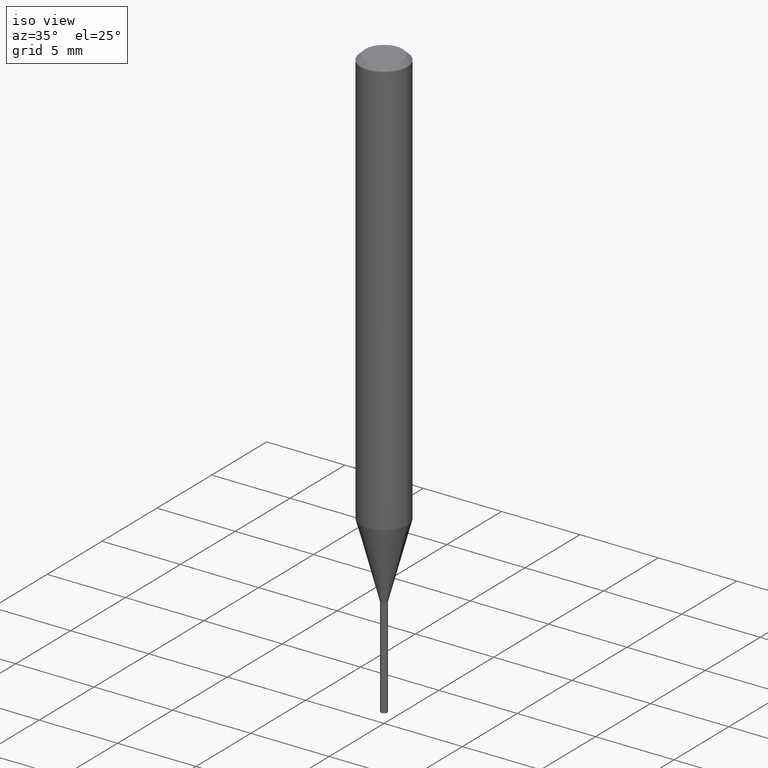
[diagram: clean part render]
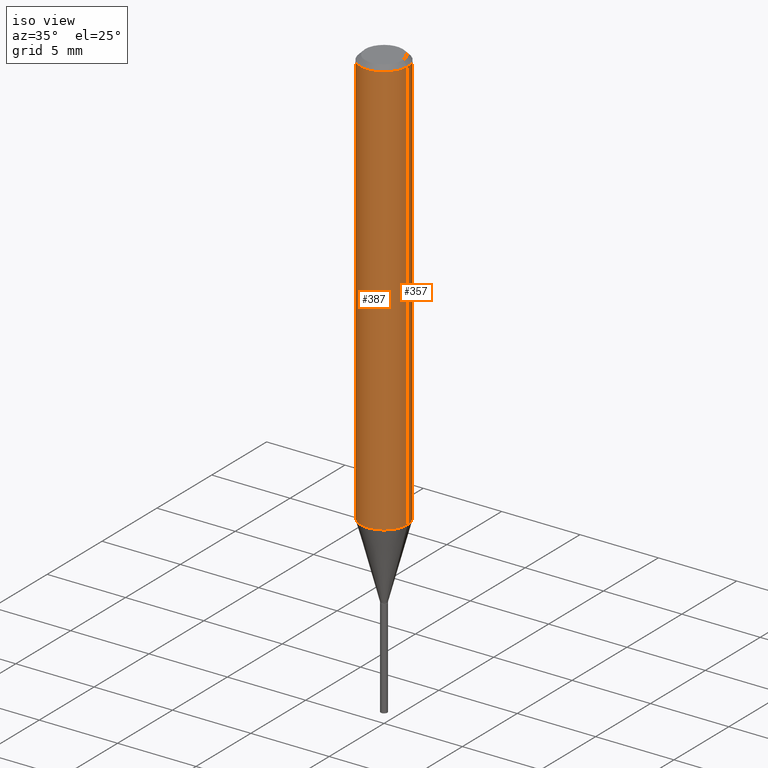
[diagram: same view with one multi-face feature highlighted, each face labeled with its STEP entity id]
A machine part, iso view. The highlighted faces form ONE feature: a constant-radius fillet chain: 2 tangent blend faces with common blend radius 1.4999 mm. The faces share edges in the B-rep.
Their STEP definitions:
[1] entity #387 (Cylinder):
#9 = FACE_OUTER_BOUND ( 'NONE', #11, .T. ) ;
#11 = EDGE_LOOP ( 'NONE', ( #442, #222, #200, #400 ) ) ;
#69 = DIRECTION ( 'NONE',  ( 1.000000000000000000, -6.982962677686266711E-15, 4.876176775795936353E-29 ) ) ;
#87 = DIRECTION ( 'NONE',  ( -2.445468806185136877E-29, 3.491481338843145188E-15, 1.000000000000000000 ) ) ;
#92 = CARTESIAN_POINT ( 'NONE',  ( -0.05905000000000006771, 4.195754854663396409E-16, -2.904631170795525045E-30 ) ) ;
#102 = CARTESIAN_POINT ( 'NONE',  ( 2.888098660104664204E-31, -4.123439461173780263E-17, -0.01181000000000007218 ) ) ;
#106 = DIRECTION ( 'NONE',  ( -2.445468806185136597E-29, 3.491481338843145583E-15, 1.000000000000000000 ) ) ;
#136 = CARTESIAN_POINT ( 'NONE',  ( 2.572662087042671903E-29, -3.673079634195394404E-15, -1.052011818975500779 ) ) ;
#137 = EDGE_CURVE ( 'NONE', #160, #271, #181, .T. ) ;
#160 = VERTEX_POINT ( 'NONE', #210 ) ;
#162 = CARTESIAN_POINT ( 'NONE',  ( 0.05905000000000006771, -4.123439461173745257E-16, 2.879382386107503723E-30 ) ) ;
#163 = VERTEX_POINT ( 'NONE', #385 ) ;
#170 = EDGE_CURVE ( 'NONE', #267, #163, #275, .T. ) ;
#181 = CIRCLE ( 'NONE', #359, 0.05904999999999999832 ) ;
#200 = ORIENTED_EDGE ( 'NONE', *, *, #443, .T. ) ;
#201 = VECTOR ( 'NONE', #87, 39.37007874015748143 ) ;
#210 = CARTESIAN_POINT ( 'NONE',  ( -0.05904999999999999832, -1.437581528937225982E-15, -0.01181000000000007218 ) ) ;
#222 = ORIENTED_EDGE ( 'NONE', *, *, #170, .T. ) ;
#228 = DIRECTION ( 'NONE',  ( -2.445468806185136877E-29, 3.491481338843145188E-15, 1.000000000000000000 ) ) ;
#267 = VERTEX_POINT ( 'NONE', #332 ) ;
#271 = VERTEX_POINT ( 'NONE', #457 ) ;
#275 = CIRCLE ( 'NONE', #395, 0.05905000000000013710 ) ;
#330 = CYLINDRICAL_SURFACE ( 'NONE', #366, 0.05905000000000006771 ) ;
#332 = CARTESIAN_POINT ( 'NONE',  ( -0.05905000000000013710, -3.253504148729054517E-15, -1.052011818975500779 ) ) ;
#351 = DIRECTION ( 'NONE',  ( -2.445468806185136597E-29, 3.491481338843145583E-15, 1.000000000000000000 ) ) ;
#359 = AXIS2_PLACEMENT_3D ( 'NONE', #102, #351, #473 ) ;
#366 = AXIS2_PLACEMENT_3D ( 'NONE', #448, #106, #69 ) ;
#385 = CARTESIAN_POINT ( 'NONE',  ( 0.05905000000000013710, -4.085423580312769324E-15, -1.052011818975500779 ) ) ;
#387 = ADVANCED_FACE ( 'NONE', ( #9 ), #330, .T. ) ;
#394 = DIRECTION ( 'NONE',  ( -2.445468806185136597E-29, 3.491481338843145583E-15, 1.000000000000000000 ) ) ;
#395 = AXIS2_PLACEMENT_3D ( 'NONE', #136, #394, #438 ) ;
#400 = ORIENTED_EDGE ( 'NONE', *, *, #137, .F. ) ;
#434 = LINE ( 'NONE', #92, #201 ) ;
#438 = DIRECTION ( 'NONE',  ( 1.000000000000000000, -6.982962677686264344E-15, 0.000000000000000000 ) ) ;
#440 = VECTOR ( 'NONE', #228, 39.37007874015748143 ) ;
#442 = ORIENTED_EDGE ( 'NONE', *, *, #452, .F. ) ;
#443 = EDGE_CURVE ( 'NONE', #163, #271, #470, .T. ) ;
#448 = CARTESIAN_POINT ( 'NONE',  ( 0.000000000000000000, 0.000000000000000000, 0.000000000000000000 ) ) ;
#452 = EDGE_CURVE ( 'NONE', #267, #160, #434, .T. ) ;
#457 = CARTESIAN_POINT ( 'NONE',  ( 0.05904999999999999832, -4.535783407291118600E-16, -0.01181000000000007218 ) ) ;
#470 = LINE ( 'NONE', #162, #440 ) ;
#473 = DIRECTION ( 'NONE',  ( 1.000000000000000000, -6.982962677686266711E-15, 0.000000000000000000 ) ) ;
[2] entity #357 (Cylinder):
#6 = CYLINDRICAL_SURFACE ( 'NONE', #276, 0.05905000000000006771 ) ;
#17 = CARTESIAN_POINT ( 'NONE',  ( 2.888098660104664204E-31, -4.123439461173780263E-17, -0.01181000000000007218 ) ) ;
#25 = CIRCLE ( 'NONE', #337, 0.05904999999999999832 ) ;
#40 = EDGE_CURVE ( 'NONE', #271, #160, #25, .T. ) ;
#43 = DIRECTION ( 'NONE',  ( -2.445468806185136597E-29, 3.491481338843145583E-15, 1.000000000000000000 ) ) ;
#80 = DIRECTION ( 'NONE',  ( -2.445468806185136597E-29, 3.491481338843145583E-15, 1.000000000000000000 ) ) ;
#87 = DIRECTION ( 'NONE',  ( -2.445468806185136877E-29, 3.491481338843145188E-15, 1.000000000000000000 ) ) ;
#92 = CARTESIAN_POINT ( 'NONE',  ( -0.05905000000000006771, 4.195754854663396409E-16, -2.904631170795525045E-30 ) ) ;
#104 = CIRCLE ( 'NONE', #309, 0.05905000000000013710 ) ;
#108 = EDGE_LOOP ( 'NONE', ( #118, #175, #408, #283 ) ) ;
#117 = FACE_OUTER_BOUND ( 'NONE', #108, .T. ) ;
#118 = ORIENTED_EDGE ( 'NONE', *, *, #370, .T. ) ;
#135 = DIRECTION ( 'NONE',  ( 1.000000000000000000, -6.982962677686266711E-15, 0.000000000000000000 ) ) ;
#140 = DIRECTION ( 'NONE',  ( -2.445468806185136597E-29, 3.491481338843145583E-15, 1.000000000000000000 ) ) ;
#160 = VERTEX_POINT ( 'NONE', #210 ) ;
#162 = CARTESIAN_POINT ( 'NONE',  ( 0.05905000000000006771, -4.123439461173745257E-16, 2.879382386107503723E-30 ) ) ;
#163 = VERTEX_POINT ( 'NONE', #385 ) ;
#175 = ORIENTED_EDGE ( 'NONE', *, *, #452, .T. ) ;
#195 = DIRECTION ( 'NONE',  ( 1.000000000000000000, -6.982962677686264344E-15, 0.000000000000000000 ) ) ;
#201 = VECTOR ( 'NONE', #87, 39.37007874015748143 ) ;
#210 = CARTESIAN_POINT ( 'NONE',  ( -0.05904999999999999832, -1.437581528937225982E-15, -0.01181000000000007218 ) ) ;
#225 = DIRECTION ( 'NONE',  ( 1.000000000000000000, -6.982962677686266711E-15, 4.876176775795936353E-29 ) ) ;
#228 = DIRECTION ( 'NONE',  ( -2.445468806185136877E-29, 3.491481338843145188E-15, 1.000000000000000000 ) ) ;
#267 = VERTEX_POINT ( 'NONE', #332 ) ;
#271 = VERTEX_POINT ( 'NONE', #457 ) ;
#276 = AXIS2_PLACEMENT_3D ( 'NONE', #460, #80, #225 ) ;
#283 = ORIENTED_EDGE ( 'NONE', *, *, #443, .F. ) ;
#309 = AXIS2_PLACEMENT_3D ( 'NONE', #402, #43, #195 ) ;
#332 = CARTESIAN_POINT ( 'NONE',  ( -0.05905000000000013710, -3.253504148729054517E-15, -1.052011818975500779 ) ) ;
#337 = AXIS2_PLACEMENT_3D ( 'NONE', #17, #140, #135 ) ;
#357 = ADVANCED_FACE ( 'NONE', ( #117 ), #6, .T. ) ;
#370 = EDGE_CURVE ( 'NONE', #163, #267, #104, .T. ) ;
#385 = CARTESIAN_POINT ( 'NONE',  ( 0.05905000000000013710, -4.085423580312769324E-15, -1.052011818975500779 ) ) ;
#402 = CARTESIAN_POINT ( 'NONE',  ( 2.572662087042671903E-29, -3.673079634195394404E-15, -1.052011818975500779 ) ) ;
#408 = ORIENTED_EDGE ( 'NONE', *, *, #40, .F. ) ;
#434 = LINE ( 'NONE', #92, #201 ) ;
#440 = VECTOR ( 'NONE', #228, 39.37007874015748143 ) ;
#443 = EDGE_CURVE ( 'NONE', #163, #271, #470, .T. ) ;
#452 = EDGE_CURVE ( 'NONE', #267, #160, #434, .T. ) ;
#457 = CARTESIAN_POINT ( 'NONE',  ( 0.05904999999999999832, -4.535783407291118600E-16, -0.01181000000000007218 ) ) ;
#460 = CARTESIAN_POINT ( 'NONE',  ( 0.000000000000000000, 0.000000000000000000, 0.000000000000000000 ) ) ;
#470 = LINE ( 'NONE', #162, #440 ) ;